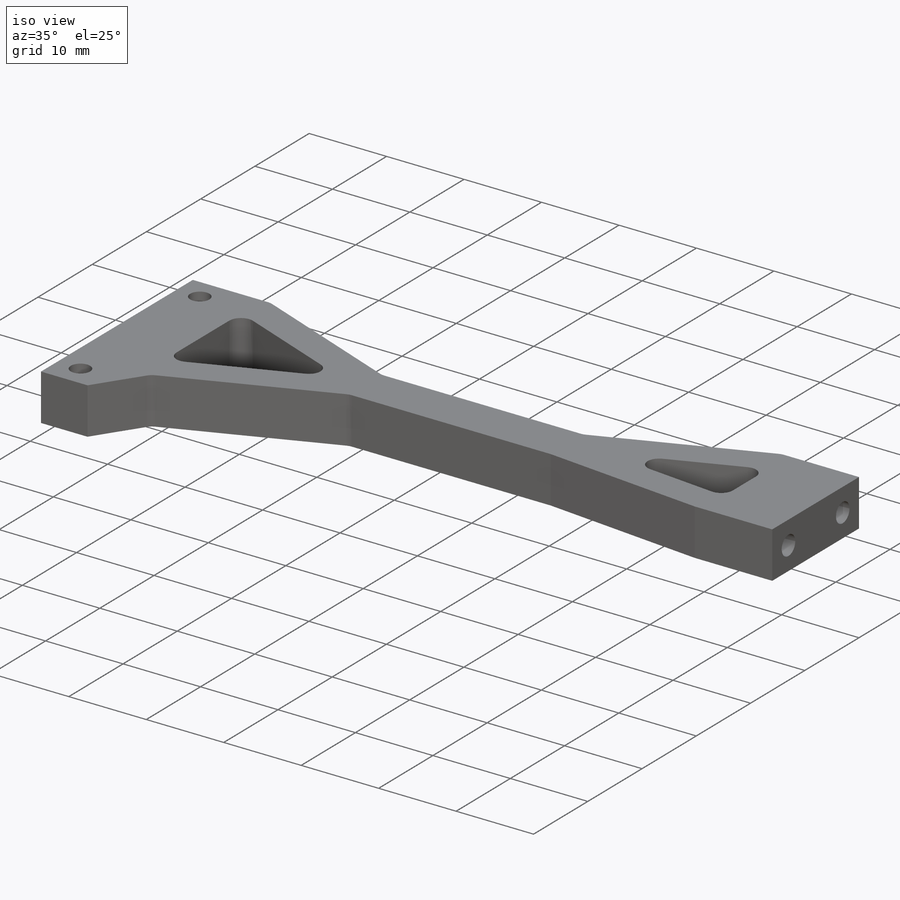
[diagram: iso view]
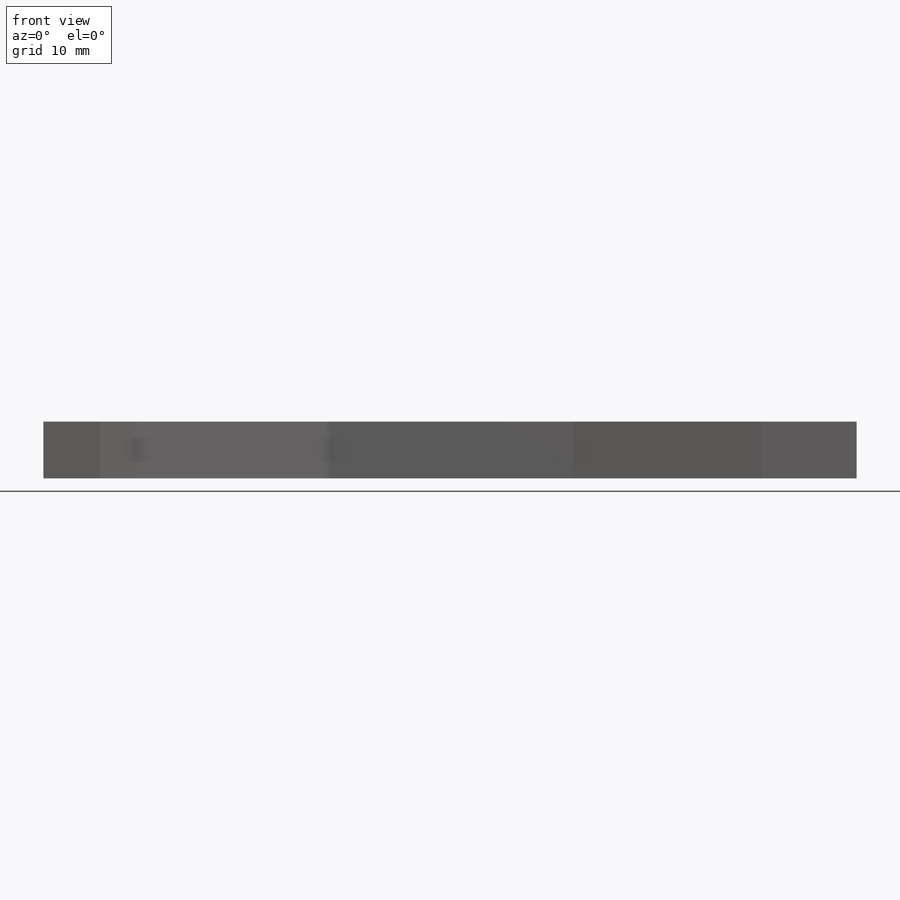
[diagram: front view]
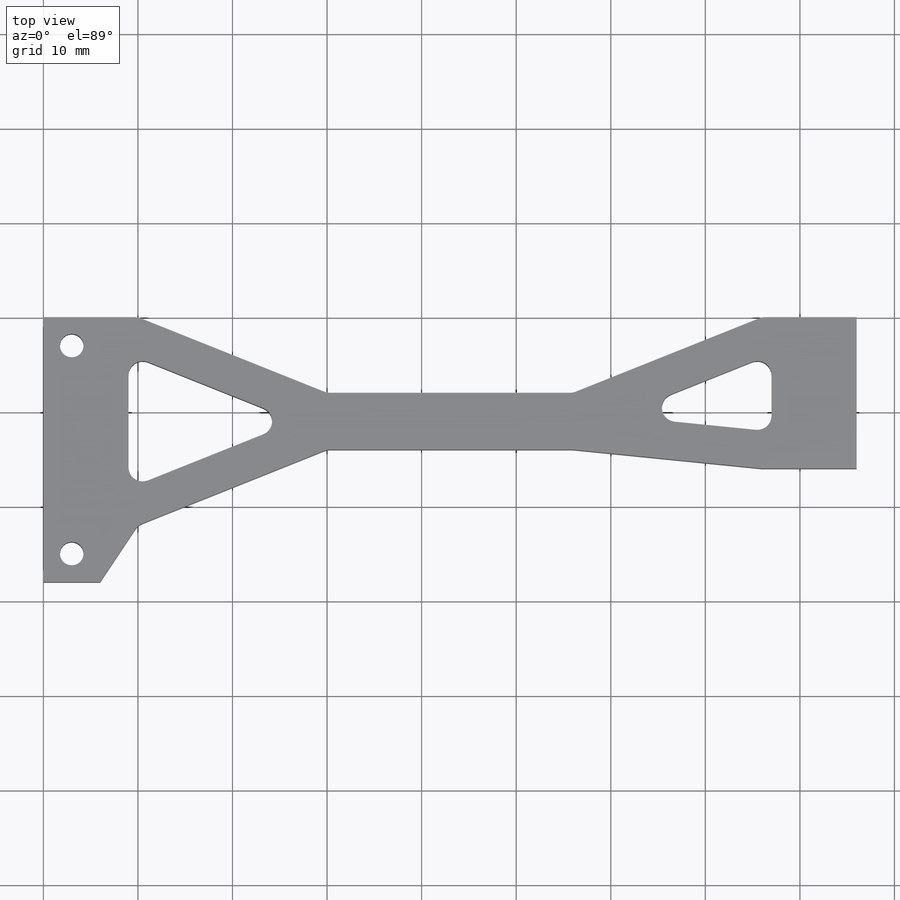
[diagram: top view]
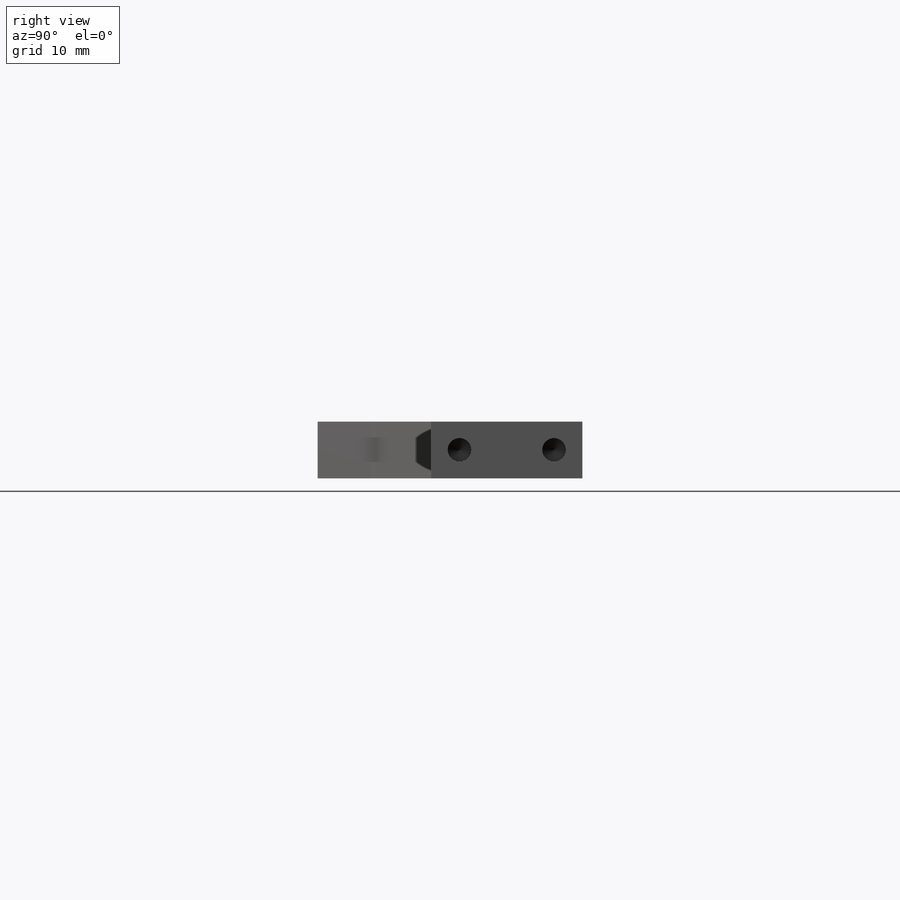
[diagram: right view]
SOLIDWORKS PART (.sldprt)
format: sldprt  version: not decoded by parser v0  size: 331,264 bytes
history: native  units: mm
features: sketch x7, hole x3, material x1, extrude x1, fillet x1 (+11 scaffold rows collapsed)
feature tree (24):
  scaffold x11  (default folders/planes/origin — collapsed)
  material  "1060 Alloy"
  sketch  "Sketch2"  dims[c1.D1=92.0mm c1.D2=10.0mm c1.D3=6.0mm c1.D4=16.0mm c1.D5=28.0mm c2.D1=86.0mm c2.D2=16.0mm c2.D4=6.0mm c2.D6=6.0mm c3.D1=6.0mm c3.D2=86.0mm c3.D4=8.0mm c3.D5=28.0mm c4.D4=12.0mm c4.D6=6.0mm c4.D7=12.0mm c4.D8=6.0mm c4.D9=6.0mm c4.D10=12.0mm c4.D11=6.0mm c4.D12=12.0mm c4.D13=8.0mm c4.D14=15.0mm c5.D11=2.0mm c5.D4=10.0mm c5.D6=10.0mm c5.D7=20.0mm c5.D8=20.0mm c5.D9=26.0mm c5.D3=6.0mm c6.D9=7.0mm c6.D10=4.0mm c6.D11=4.0mm c6.D12=4.0mm c6.D13=4.0mm c6.D15=9.0mm c6.D16=9.0mm c6.D17=4.0mm c6.D18=4.0mm c7.D17=9.0mm c7.D9=16.0mm c7.D14=8.0mm c8.D17=8.0mm c8.D12=20.0mm c9.D12=~5.710593deg c10.D12=4.0mm]
  extrude  "Boss-Extrude1"  Depth=6mm
  hole  "Tap Drill for M3 Tap3"  Diameter=2.5mm Depth=10mm
  sketch  "Sketch8"  dims[c1.D1=3.0mm c1.D2=3.0mm c1.D3=3.0mm c1.D4=3.0mm c2.D1=3.0mm c2.D2=3.0mm c2.D4=3.0mm c3.D1=3.0mm]
  sketch  "Sketch7"  dims[hole-wizard template sketch: 50 standard entries collapsed; hole parameters above]
  hole  "Tap Drill for M3 Tap2"  Diameter=2.5mm Depth=8mm
  sketch  "Sketch6"  dims[c1.D1=3.0mm c1.D2=3.0mm c1.D3=10.0mm c2.D1=3.0mm c2.D2=8.0mm c3.D1=3.0mm c3.D2=3.0mm c3.D3=10.0mm c3.D4=2.0mm]
  sketch  "Sketch5"  dims[hole-wizard template sketch: 50 standard entries collapsed; hole parameters above]
  hole  "Tap Drill for M3 Tap1"  Diameter=2.5mm Depth=8mm
  sketch  "Sketch4"  dims[c1.D1=3.0mm c1.D2=9.0mm c1.D3=10.0mm c2.D2=8.0mm]
  sketch  "Sketch3"  dims[hole-wizard template sketch: 50 standard entries collapsed; hole parameters above]
  fillet  "Fillet1"  Radius=1.5mm
decode coverage: 12 of 12 modeling features carry decoded parameters
note: ~ marks probable driven/reference dimensions
note: suppression state not decoded; provenance and decode notes live in map.json
